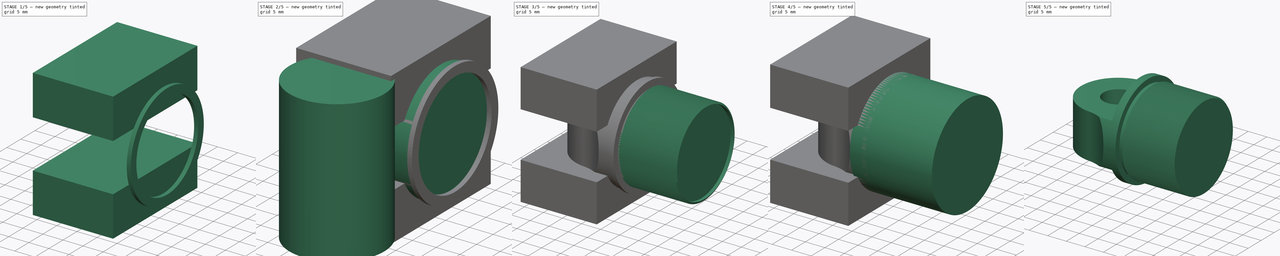
[diagram: build sequence overview — one tinted view per stage of 5, left to right]
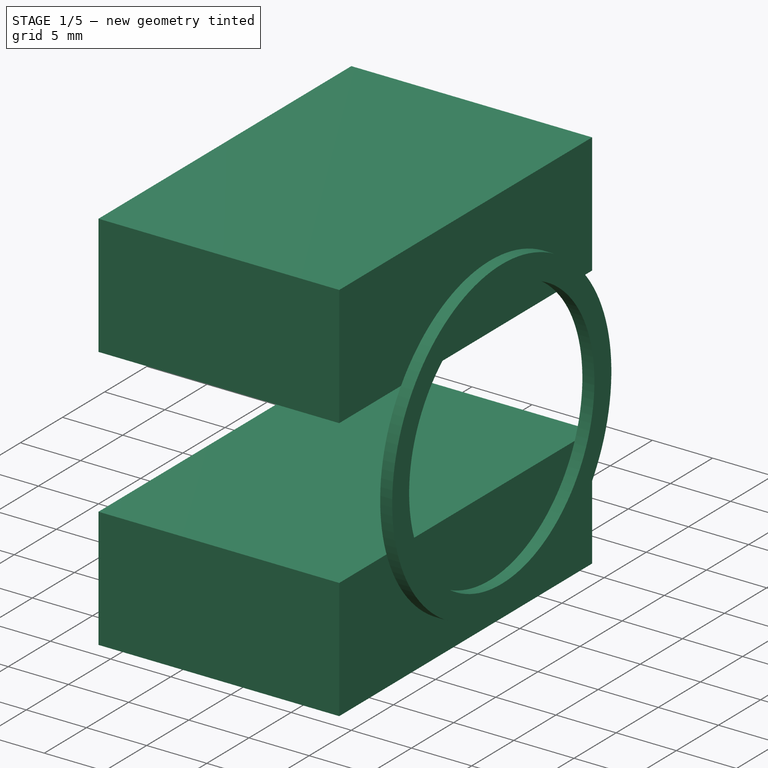
[diagram: stage 1 of 5 — iso view after this stage's code; geometry added in this stage tinted green]
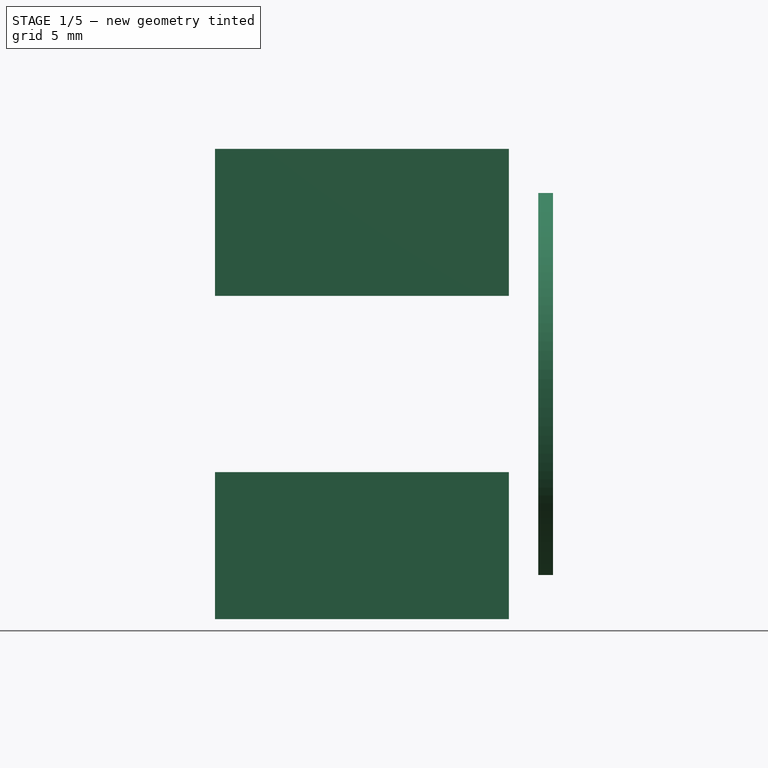
[diagram: stage 1 of 5 — front view after this stage's code; geometry added in this stage tinted green]
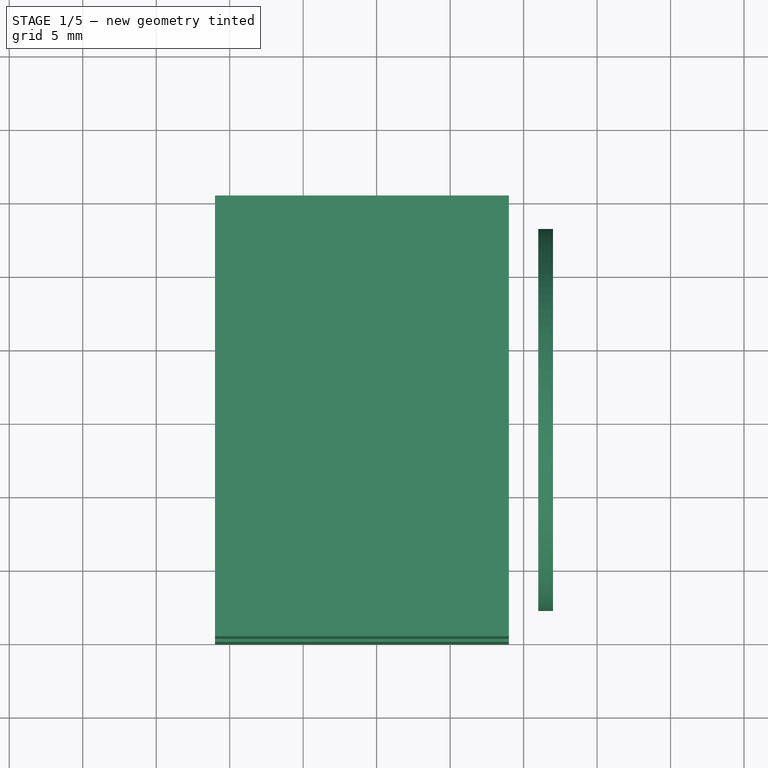
[diagram: stage 1 of 5 — top view after this stage's code; geometry added in this stage tinted green]
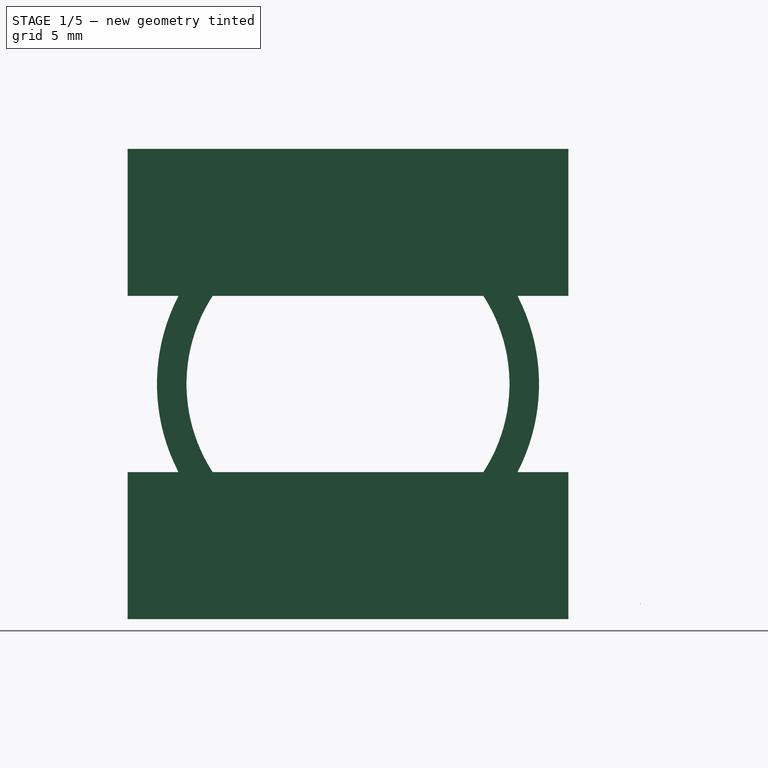
[diagram: stage 1 of 5 — right view after this stage's code; geometry added in this stage tinted green]
FCSTD DOCUMENT  (FreeCAD 0.17R13541 (Git))
Label: ERG-T-01-BC-02
License: All rights reserved
LicenseURL: http://en.wikipedia.org/wiki/All_rights_reserved
objects: Drawing::FeatureViewPython×22, Part::Cylinder×13, Part::MultiFuse×8, Part::Cut×7, Drawing::FeatureViewPart×4, Part::Box×3, Drawing::FeaturePage×2, Sketcher::SketchObject×1, Part::Helix×1, Part::Sweep×1, Part::MultiCommon×1
note: 35 computed .brp shape members not serialized (recipe doc carries the construction recipe); baked Part::Feature solids carry a one-line shape summary decoded from their .brp

FEATURE [Part::Cylinder] Cylinder039  label="Cylinder042"
  Angle = 360
  AttacherType = Attacher::AttachEngine3D
  Height = 1
  Placement = pos=(1,0,0) rot=(0,1,0;1.5708rad)
  Radius = 10.99
FEATURE [Part::Cylinder] Cylinder040  label="Cylinder043"
  Angle = 360
  AttacherType = Attacher::AttachEngine3D
  Height = 1
  Placement = pos=(1,0,0) rot=(0,1,0;1.5708rad)
  Radius = 13
FEATURE [Part::Cut] Cut020
  Base = -> Cylinder040
  Tool = -> Cylinder039
FEATURE [Part::Cylinder] Cylinder041  label="Cylinder044"
  Angle = 360
  AttacherType = Attacher::AttachEngine3D
  Height = 0.1
  Placement = pos=(-9,19.89,-15) rot=(0,0,1;0rad)
  Radius = 0.01
FEATURE [Part::Box] Box001  label="Cube001"
  AttacherType = Attacher::AttachEngine3D
  Height = 10
  Length = 20
  Placement = pos=(-21,-15,6) rot=(0,0,1;0rad)
  Width = 30
FEATURE [Part::Box] Box002  label="Cube002"
  AttacherType = Attacher::AttachEngine3D
  Height = 10
  Length = 20
  Placement = pos=(-21,-15,-16) rot=(0,0,1;0rad)
  Width = 30
FEATURE [Part::MultiFuse] Fusion014
  Shapes = -> [Box002,Box001]
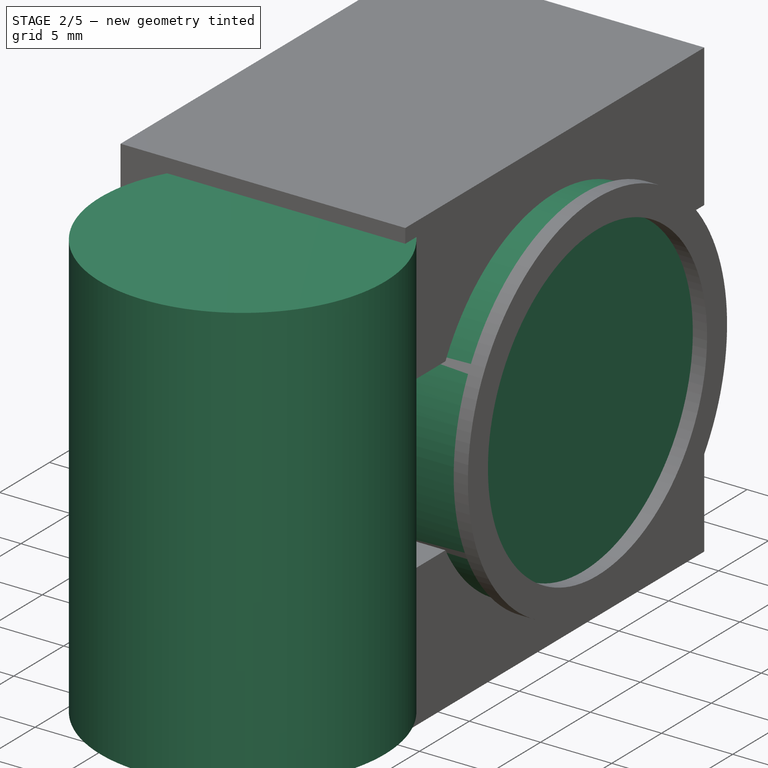
[diagram: stage 2 of 5 — iso view after this stage's code; geometry added in this stage tinted green]
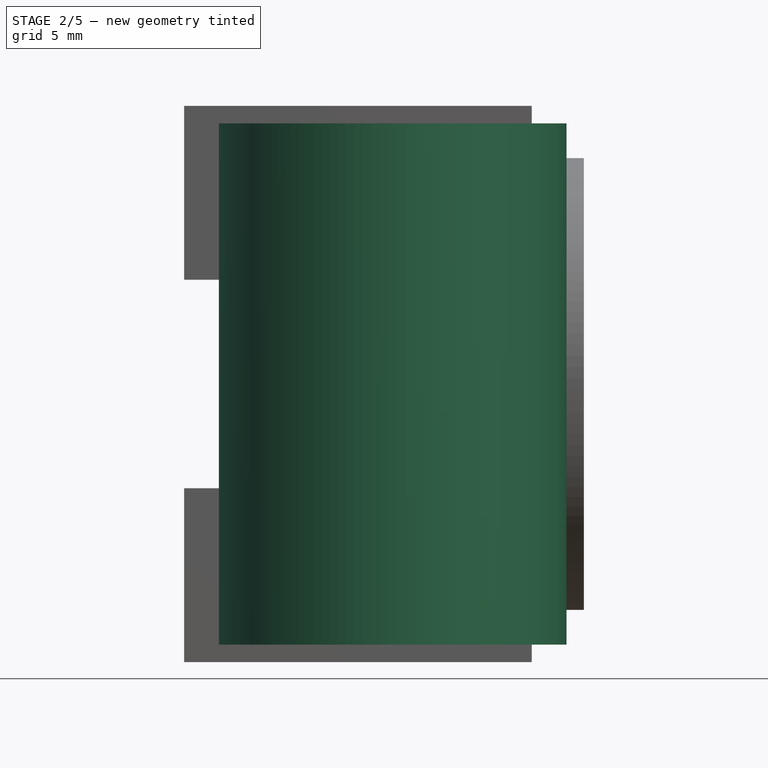
[diagram: stage 2 of 5 — front view after this stage's code; geometry added in this stage tinted green]
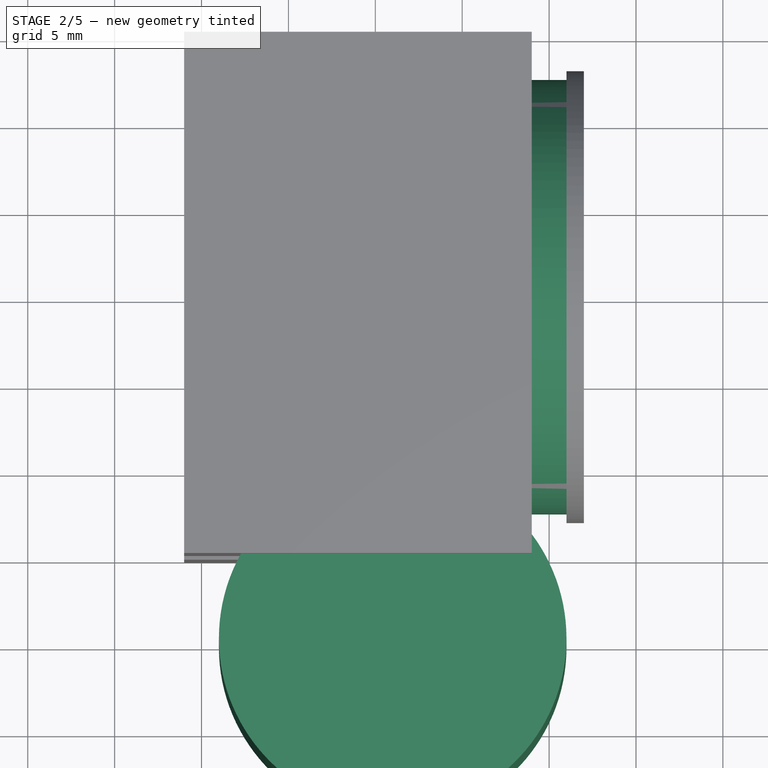
[diagram: stage 2 of 5 — top view after this stage's code; geometry added in this stage tinted green]
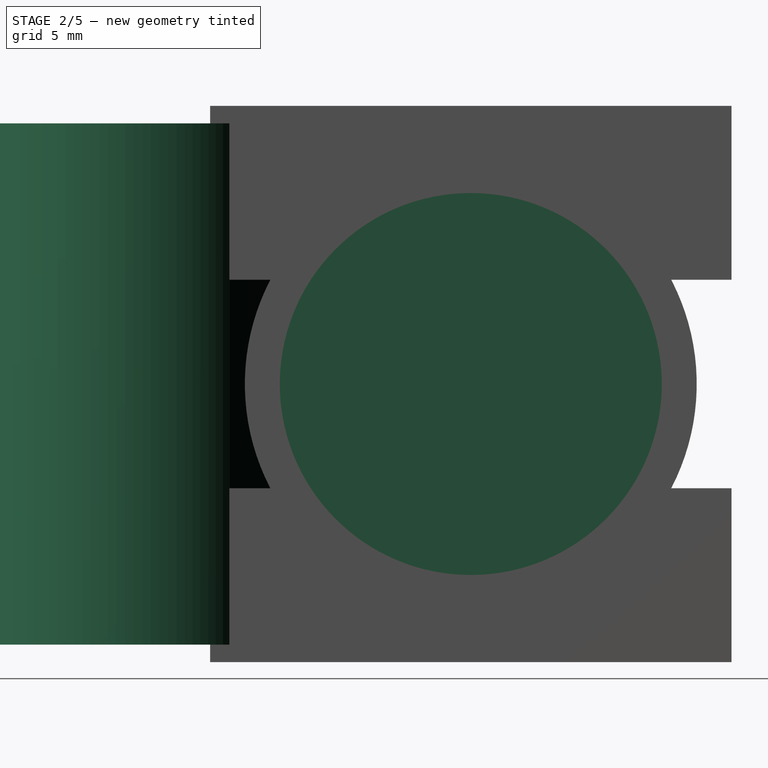
[diagram: stage 2 of 5 — right view after this stage's code; geometry added in this stage tinted green]
FEATURE [Part::Cylinder] Cylinder034  label="Cylinder037"
  Angle = 360
  AttacherType = Attacher::AttachEngine3D
  Height = 20
  Placement = pos=(-19,0,0) rot=(0,1,0;1.5708rad)
  Radius = 12.5
FEATURE [Part::Cylinder] Cylinder035  label="Cylinder038"
  Angle = 360
  AttacherType = Attacher::AttachEngine3D
  Height = 30
  Placement = pos=(-7,0,-15) rot=(0,0,1;0rad)
  Radius = 10
FEATURE [Part::Cylinder] Cylinder038  label="Cylinder041"
  Angle = 360
  AttacherType = Attacher::AttachEngine3D
  Height = 30
  Placement = pos=(-9,-19.89,-15) rot=(0,0,1;0rad)
  Radius = 10
FEATURE [Part::Box] Box  label="Cube"
  AttacherType = Attacher::AttachEngine3D
  Height = 30
  Length = 9
  Placement = pos=(-8,-30,-15) rot=(0,0,1;0rad)
  Width = 60
FEATURE [Part::MultiFuse] Fusion011
  Shapes = -> [Cylinder035,Box]
FEATURE [Part::MultiCommon] Common
  Shapes = -> [Fusion011,Cylinder034]
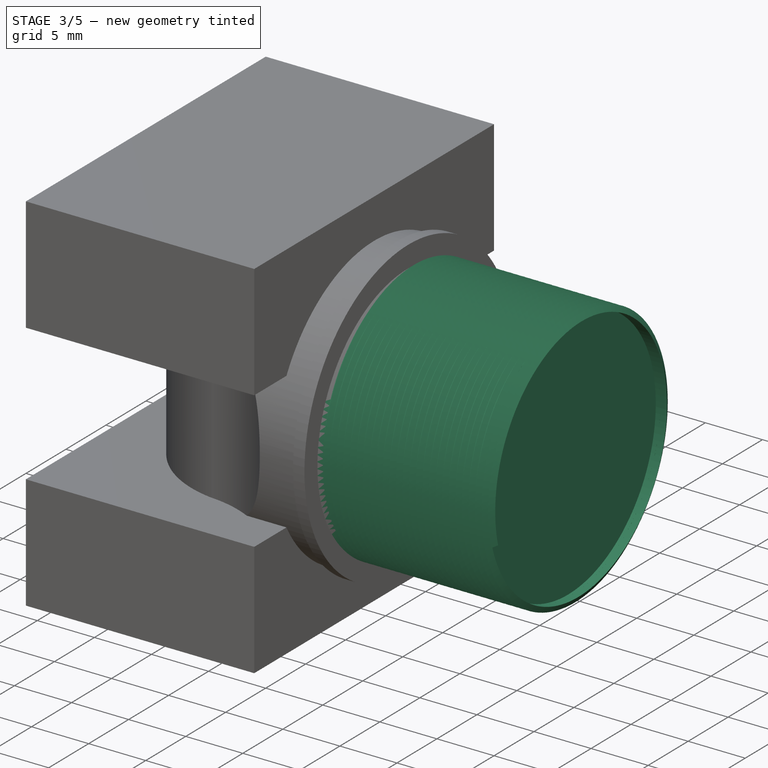
[diagram: stage 3 of 5 — iso view after this stage's code; geometry added in this stage tinted green]
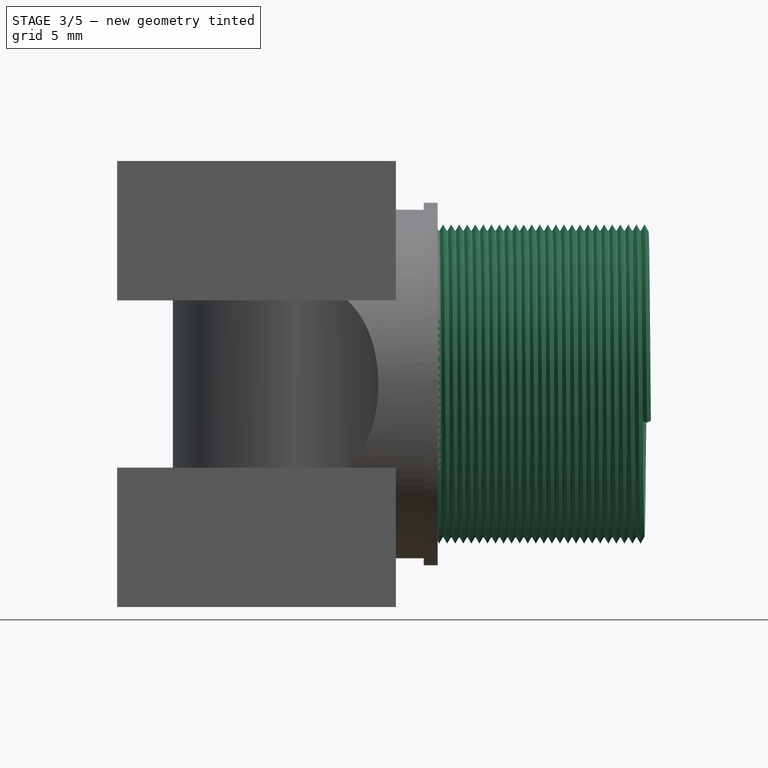
[diagram: stage 3 of 5 — front view after this stage's code; geometry added in this stage tinted green]
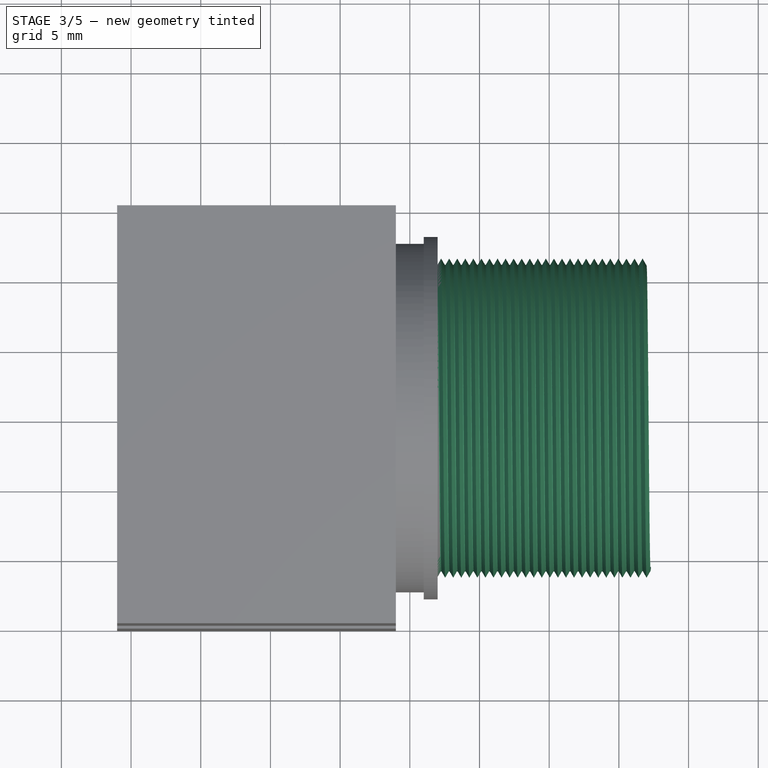
[diagram: stage 3 of 5 — top view after this stage's code; geometry added in this stage tinted green]
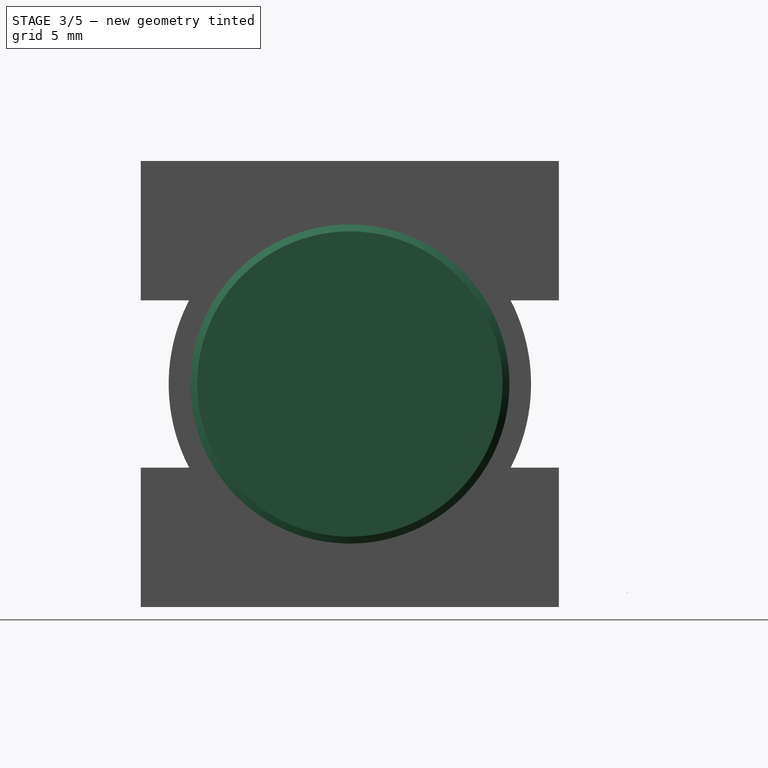
[diagram: stage 3 of 5 — right view after this stage's code; geometry added in this stage tinted green]
FEATURE [Part::Sweep] Sweep013
  Frenet = true
  Placement = pos=(-156.5,0,0) rot=(0,0,1;0rad)
  Sections = -> [Sketch019]
  Solid = true
  Spine = -> Helix013
  Transition = 1
FEATURE [Part::Cylinder] Cylinder
  Angle = 360
  AttacherType = Attacher::AttachEngine3D
  Height = 15
  Placement = pos=(1,0,0) rot=(0,1,0;1.5708rad)
  Radius = 11
FEATURE [Part::Cylinder] Cylinder036  label="Cylinder039"
  Angle = 360
  AttacherType = Attacher::AttachEngine3D
  Height = 30
  Placement = pos=(-7,0,-15) rot=(0,0,1;0rad)
  Radius = 4
FEATURE [Part::Cylinder] Cylinder037  label="Cylinder040"
  Angle = 360
  AttacherType = Attacher::AttachEngine3D
  Height = 30
  Placement = pos=(-9,19.89,-15) rot=(0,0,1;0rad)
  Radius = 10
FEATURE [Part::MultiFuse] Fusion010
  Shapes = -> [Cylinder037,Cylinder038]
FEATURE [Part::Cut] Cut
  Base = -> Common
  Tool = -> Fusion010
FEATURE [Part::Cut] Cut019
  Base = -> Cut
  Tool = -> Cylinder036
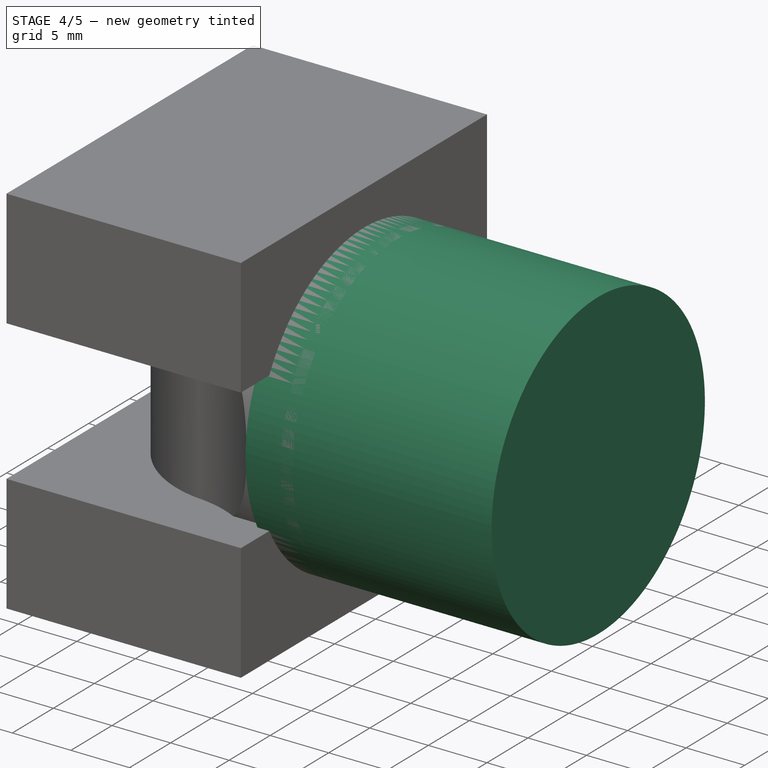
[diagram: stage 4 of 5 — iso view after this stage's code; geometry added in this stage tinted green]
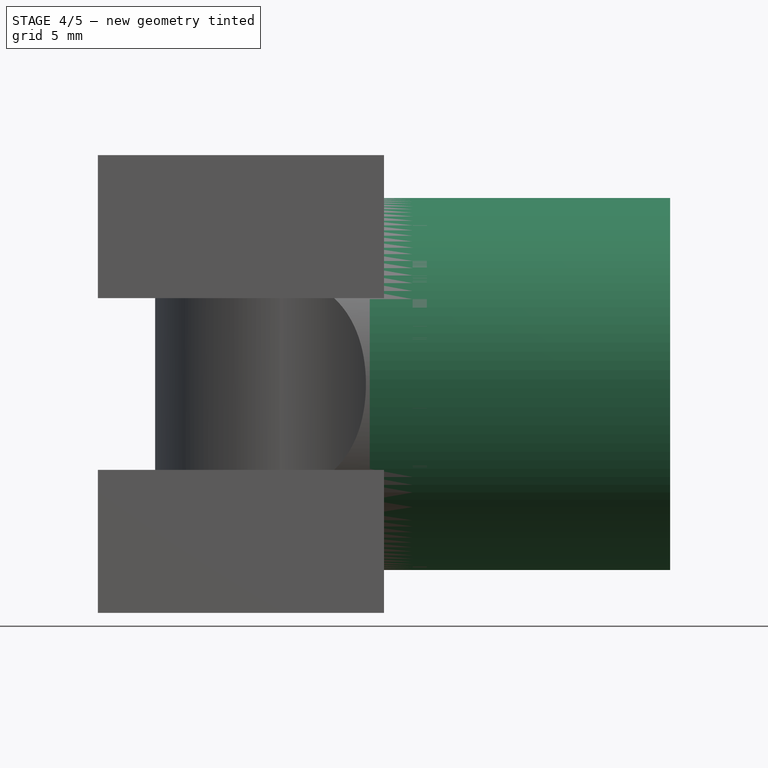
[diagram: stage 4 of 5 — front view after this stage's code; geometry added in this stage tinted green]
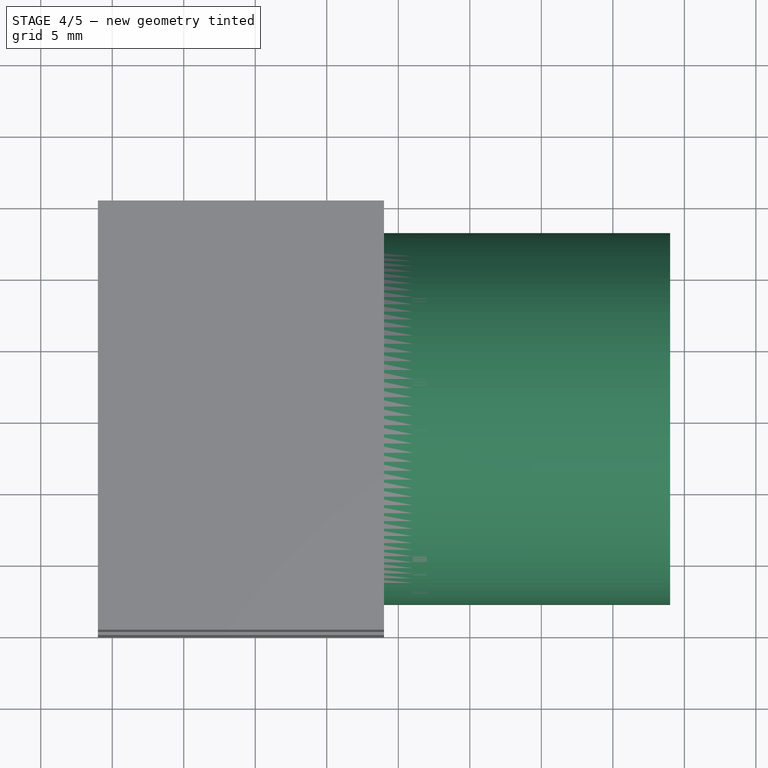
[diagram: stage 4 of 5 — top view after this stage's code; geometry added in this stage tinted green]
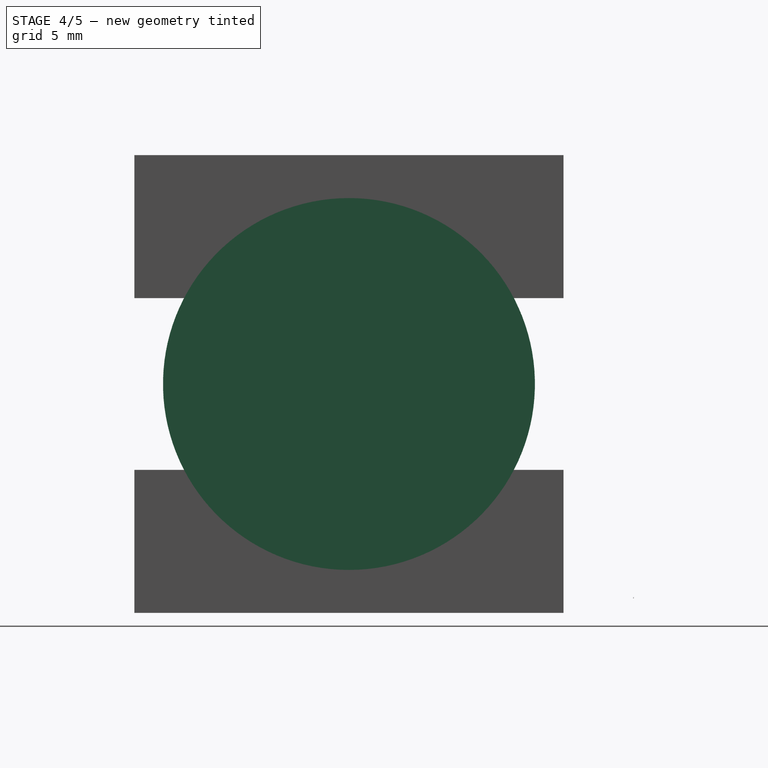
[diagram: stage 4 of 5 — right view after this stage's code; geometry added in this stage tinted green]
FEATURE [Sketcher::SketchObject] Sketch019  label="T018"
  Placement = pos=(156.5,0,-11.45) rot=(1,0,0;1.5708rad)
  sketch-geometry (3):
    g0: LineSegment StartX=0.0792305 StartY=0.500193 StartZ=0 EndX=0.65623 EndY=0.500193 EndZ=0
    g1: LineSegment StartX=0.0792305 StartY=0.500193 StartZ=0 EndX=0.36773 EndY=0.000495962 EndZ=0
    g2: LineSegment StartX=0.36773 StartY=0.000495962 StartZ=0 EndX=0.65623 EndY=0.500193 EndZ=0
  constraints (7):
    c: Horizontal(g0)
    c: DistanceX(g0,g0) = 0.577
    c: Coincident(g1,g0)
    c: Coincident(g2,g1)
    c: Coincident(g2,g0)
    c: Angle(g1,g0) = 1.0472
    c: Angle(g0,g2) = 1.0472
FEATURE [Part::Cylinder] Cylinder030  label="Cylinder033"
  Angle = 360
  AttacherType = Attacher::AttachEngine3D
  Height = 15
  Placement = pos=(1,0,0) rot=(0,1,0;1.5708rad)
  Radius = 13
FEATURE [Part::Cylinder] Cylinder031  label="Cylinder034"
  Angle = 360
  AttacherType = Attacher::AttachEngine3D
  Height = 3
  Placement = pos=(16,0,0) rot=(0,1,0;1.5708rad)
  Radius = 13
FEATURE [Part::Cylinder] Cylinder032  label="Cylinder035"
  Angle = 360
  AttacherType = Attacher::AttachEngine3D
  Height = 3
  Placement = pos=(-2,0,0) rot=(0,1,0;1.5708rad)
  Radius = 13
FEATURE [Part::MultiFuse] Fusion008
  Shapes = -> [Cylinder031,Cylinder032]
FEATURE [Part::Helix] Helix013
  Angle = 0
  AttacherType = Attacher::AttachEngine3D
  Height = 16.64
  LocalCoord = 0
  Pitch = 0.578
  Placement = pos=(157,0,0) rot=(0,1,0;1.5708rad)
  Radius = 9.5
  Style = 1
FEATURE [Part::Cylinder] Cylinder033  label="Cylinder036"
  Angle = 360
  AttacherType = Attacher::AttachEngine3D
  Height = 15
  Placement = pos=(1,0,0) rot=(0,1,0;1.5708rad)
  Radius = 11.5
FEATURE [Part::Cut] Cut018
  Base = -> Cylinder030
  Tool = -> Cylinder033
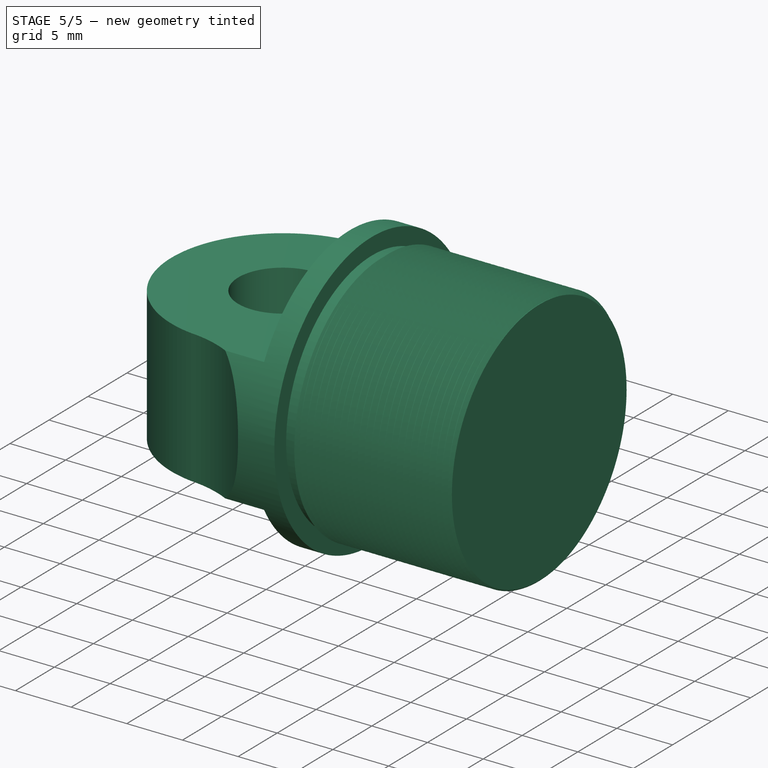
[diagram: stage 5 of 5 — iso view after this stage's code; geometry added in this stage tinted green]
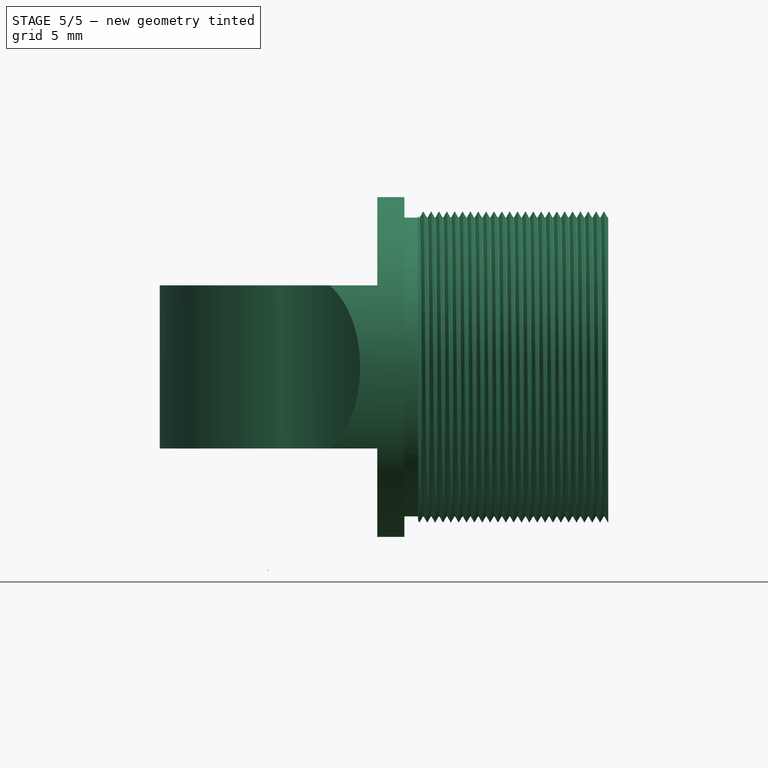
[diagram: stage 5 of 5 — front view after this stage's code; geometry added in this stage tinted green]
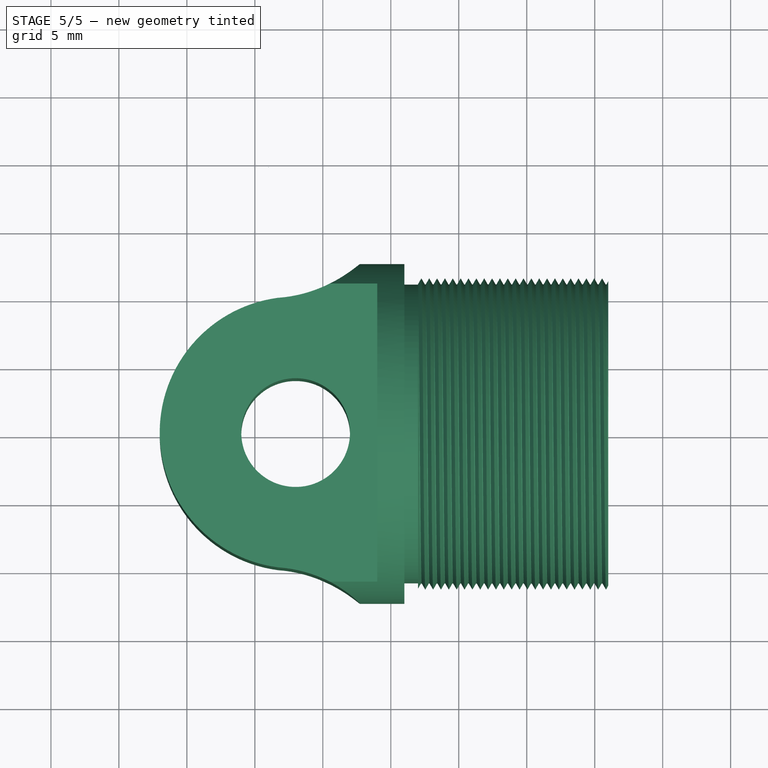
[diagram: stage 5 of 5 — top view after this stage's code; geometry added in this stage tinted green]
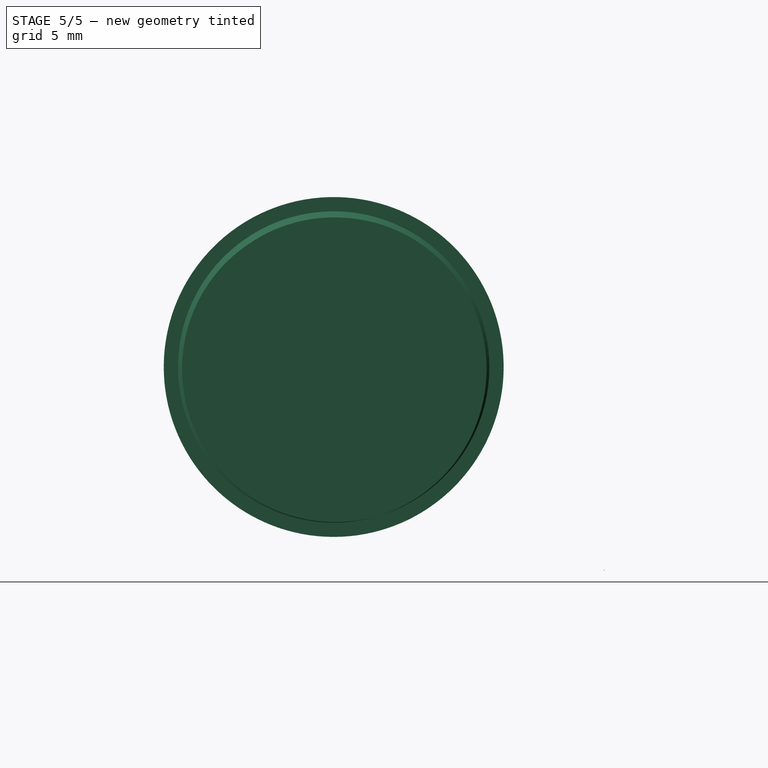
[diagram: stage 5 of 5 — right view after this stage's code; geometry added in this stage tinted green]
FEATURE [Part::MultiFuse] Fusion009
  Shapes = -> [Fusion008,Cut018]
FEATURE [Part::Cut] Cut017
  Base = -> Sweep013
  Tool = -> Fusion009
FEATURE [Part::MultiFuse] Fusion
  Shapes = -> [Cylinder,Cut017]
FEATURE [Part::MultiFuse] Fusion012  label="BatteryCapQ"
  Shapes = -> [Fusion,Cut019]
FEATURE [Part::Cut] Cut021  label="BatteryCapWWW"
  Base = -> Fusion012
  Tool = -> Cut020
FEATURE [Part::MultiFuse] Fusion013  label="BatteryCap-QQQ"
  Shapes = -> [Cut021,Cylinder041]
FEATURE [Part::Cut] Cut022  label="BatteryCap-02"
  Base = -> Fusion013
  Tool = -> Fusion014
FEATURE [Drawing::FeatureViewPart] Ortho  label="Ortho_0_0"
  Direction = (0,0,1)
  HiddenWidth = 0.15
  LineWidth = 0.35
  Rotation = 90
  Scale = 3
  ShowHiddenLines = false
  ShowSmoothLines = false
  Source = -> Cut022
  Tolerance = 0.05
  ViewResult = <blob: 45097 chars omitted>
  Visible = true
  X = 79.9334
  Y = 83
FEATURE [Drawing::FeatureViewPart] Ortho001  label="Ortho_1_0"
  Direction = (0,1,0)
  HiddenWidth = 0.15
  LineWidth = 0.35
  Rotation = 180
  Scale = 3
  ShowHiddenLines = false
  ShowSmoothLines = false
  Source = -> Cut022
  Tolerance = 0.05
  ViewResult = <blob: 40702 chars omitted>
  Visible = true
  X = 209.567
  Y = 83
FEATURE [Drawing::FeatureViewPython] dia001  # drawing view (typed FeaturePython)
  Rotation = 0
  ViewResult = <g>  <circle cx ="79.933400" cy ="62.000000" r="0.250000" stroke="none" fill="rgb(255,0,0)" /> \n<line x1="102.776300" y1="33.921242" x2="72.360517" y2="71.308676" style="stroke:rgb(255,0,0);stroke-width:0.10" />\n<polygon points="87.506283,52.691324 85.856274,53.927233 85.928599,54.630632 86.631997,54.558307" style="fill:rgb(255,0,0);stroke:rgb(255,0,0);stroke-width:0" />\n<polygon points="72.360517,71.308676 74.010526,70.072767 73.938201,69.369368 73.234803,69.441693" style="fill:rgb(255,0,0);stroke:rgb(255,0,0);stroke-width:0" />\n<line x1="102.776300" y1="33.921242" x2="112.648900" y2="33.921242" style="stroke:rgb(255,0,0);stroke-width:0.10" />\n<text x="107.712600" y="31.921242" font-family="inherit" font-size="3.6" fill="rgb(0,0,0)" text-anchor="middle" transform="rotate(0.000000 107.712600,31.921242)" >Ø8</text> </g>
  Visible = true
  X = 0
  Y = 0
  arrowL1 = 2
  arrowL2 = 0.5
  arrowW = 1
  arrow_scheme = 0
  autoPlaceOffset = 2
  autoPlaceText = true
  centerPointDia = 0.5
  click1_x = 102.776
  click1_y = 33.9212
  click2_x = 112.649
  click2_y = 34.4275
  click3_x = 112.649
  click3_y = 34.4275
  comma_decimal_place = false
  lineColor = rgb(255,0,0)
  strokeWidth = 0.1
  textFormat_circular = Ø%(value)3.3f
  textRenderer_color = rgb(0,0,0)
  textRenderer_family = inherit
  textRenderer_size = 3.6
  unit_custom_scale = 1
  unit_scheme = 0
FEATURE [Drawing::FeatureViewPython] rad002  # drawing view (typed FeaturePython)
  Rotation = 0
  ViewResult = <g>  <circle cx ="139.603367" cy ="55.999681" r="0.250000" stroke="none" fill="rgb(255,0,0)" /> \n<line x1="105.560879" y1="68.855058" x2="139.603367" y2="55.999681" style="stroke:rgb(255,0,0);stroke-width:0.10" />\n<polygon points="111.537809,66.598005 113.585485,66.359210 113.876606,65.714812 113.232207,65.423691" style="fill:rgb(255,0,0);stroke:rgb(255,0,0);stroke-width:0" />\n<line x1="105.560879" y1="68.855058" x2="97.207141" y2="68.855058" style="stroke:rgb(255,0,0);stroke-width:0.10" />\n<text x="101.384010" y="66.855058" font-family="inherit" font-size="3.6" fill="rgb(0,0,0)" text-anchor="middle" transform="rotate(0.000000 101.384010,66.855058)" >R10</text> </g>
  Visible = true
  X = 0
  Y = 0
  arrowL1 = 2
  arrowL2 = 0.5
  arrowW = 1
  arrow_scheme = 0
  autoPlaceOffset = 2
  autoPlaceText = true
  centerPointDia = 0.5
  click1_x = 105.561
  click1_y = 68.8551
  click2_x = 97.2071
  click2_y = 69.3613
  click3_x = 97.2071
  click3_y = 69.3613
  comma_decimal_place = false
  lineColor = rgb(255,0,0)
  strokeWidth = 0.1
  textFormat_radial = R%(value)3.3f
  textRenderer_color = rgb(0,0,0)
  textRenderer_family = inherit
  textRenderer_size = 3.6
  unit_custom_scale = 1
  unit_scheme = 0
FEATURE [Drawing::FeatureViewPython] dim001  # drawing view (typed FeaturePython)
  Rotation = 0
  ViewResult = <g> \n  <line x1="45.588200" y1="130.484000" x2="45.588200" y2="155.839499" style="stroke:rgb(255,0,0);stroke-width:0.10" />\n<line x1="114.278600" y1="129.617000" x2="114.278600" y2="155.839499" style="stroke:rgb(255,0,0);stroke-width:0.10" />\n<line x1="45.588200" y1="154.839499" x2="114.278600" y2="154.839499" style="stroke:rgb(255,0,0);stroke-width:0.10" /> \n  <polygon points="114.278600,154.839499 112.278600,154.339499 111.778600,154.839499 112.278600,155.339499" style="fill:rgb(255,0,0);stroke:rgb(255,0,0);stroke-width:0" /><polygon points="45.588200,154.839499 47.588200,155.339499 48.088200,154.839499 47.588200,154.339499" style="fill:rgb(255,0,0);stroke:rgb(255,0,0);stroke-width:0" /> \n  <text x="79.933400" y="152.839499" font-family="inherit" font-size="3.6" fill="rgb(0,0,0)" text-anchor="middle" transform="rotate(0.000000 79.933400,152.839499)" >22.8</text> </g>
  Visible = true
  X = 0
  Y = 0
  arrowL1 = 2
  arrowL2 = 0.5
  arrowW = 1
  arrow_scheme = 0
  autoPlaceOffset = 2
  autoPlaceText = true
  click1_x = 93.8741
  click1_y = 154.839
  click2_x = 93.8741
  click2_y = 154.839
  comma_decimal_place = false
  dimension_line_overshoot = 1
  gap_datum_points = 0
  halfDimension_linear = false
  lineColor = rgb(255,0,0)
  strokeWidth = 0.1
  textFormat_linear = 22.8
  textRenderer_color = rgb(0,0,0)
  textRenderer_family = inherit
  textRenderer_size = 3.6
  unit_custom_scale = 1
  unit_scheme = 0
FEATURE [Drawing::FeatureViewPython] dim002  # drawing view (typed FeaturePython)
  Rotation = 0
  ViewResult = <g> \n  <line x1="45.588200" y1="130.484000" x2="45.588200" y2="139.300299" style="stroke:rgb(255,0,0);stroke-width:0.10" />\n<line x1="46.933400" y1="129.707300" x2="46.933400" y2="139.300299" style="stroke:rgb(255,0,0);stroke-width:0.10" />\n<line x1="45.588200" y1="138.300299" x2="46.933400" y2="138.300299" style="stroke:rgb(255,0,0);stroke-width:0.10" /> \n  <polygon points="46.933400,138.300299 48.933400,138.800299 49.433400,138.300299 48.933400,137.800299" style="fill:rgb(255,0,0);stroke:rgb(255,0,0);stroke-width:0" /><polygon points="45.588200,138.300299 43.588200,137.800299 43.088200,138.300299 43.588200,138.800299" style="fill:rgb(255,0,0);stroke:rgb(255,0,0);stroke-width:0" /> \n  <text x="46.260800" y="136.300299" font-family="inherit" font-size="3.6" fill="rgb(0,0,0)" text-anchor="middle" transform="rotate(0.000000 46.260800,136.300299)" >0.4</text> </g>
  Visible = true
  X = 0
  Y = 0
  arrowL1 = 2
  arrowL2 = 0.5
  arrowW = 1
  arrow_scheme = 0
  autoPlaceOffset = 2
  autoPlaceText = true
  click1_x = 46.4716
  click1_y = 138.3
  click2_x = 46.4716
  click2_y = 138.3
  comma_decimal_place = false
  dimension_line_overshoot = 1
  gap_datum_points = 0
  halfDimension_linear = false
  lineColor = rgb(255,0,0)
  strokeWidth = 0.1
  textFormat_linear = %(value)3.1f
  textRenderer_color = rgb(0,0,0)
  textRenderer_family = inherit
  textRenderer_size = 3.6
  unit_custom_scale = 1
  unit_scheme = 0
FEATURE [Drawing::FeatureViewPython] dim003  # drawing view (typed FeaturePython)
  Rotation = 0
  ViewResult = <g> \n  <line x1="112.933400" y1="130.576100" x2="112.933400" y2="138.341892" style="stroke:rgb(255,0,0);stroke-width:0.10" />\n<line x1="114.278600" y1="129.617000" x2="114.278600" y2="138.341892" style="stroke:rgb(255,0,0);stroke-width:0.10" />\n<line x1="112.933400" y1="137.341892" x2="114.278600" y2="137.341892" style="stroke:rgb(255,0,0);stroke-width:0.10" /> \n  <polygon points="114.278600,137.341892 116.278600,137.841892 116.778600,137.341892 116.278600,136.841892" style="fill:rgb(255,0,0);stroke:rgb(255,0,0);stroke-width:0" /><polygon points="112.933400,137.341892 110.933400,136.841892 110.433400,137.341892 110.933400,137.841892" style="fill:rgb(255,0,0);stroke:rgb(255,0,0);stroke-width:0" /> \n  <text x="113.606000" y="135.341892" font-family="inherit" font-size="3.6" fill="rgb(0,0,0)" text-anchor="middle" transform="rotate(0.000000 113.606000,135.341892)" >0.4</text> </g>
  Visible = true
  X = 0
  Y = 0
  arrowL1 = 2
  arrowL2 = 0.5
  arrowW = 1
  arrow_scheme = 0
  autoPlaceOffset = 2
  autoPlaceText = true
  click1_x = 113.538
  click1_y = 137.342
  click2_x = 113.538
  click2_y = 137.342
  comma_decimal_place = false
  dimension_line_overshoot = 1
  gap_datum_points = 0
  halfDimension_linear = false
  lineColor = rgb(255,0,0)
  strokeWidth = 0.1
  textFormat_linear = %(value)3.1f
  textRenderer_color = rgb(0,0,0)
  textRenderer_family = inherit
  textRenderer_size = 3.6
  unit_custom_scale = 1
  unit_scheme = 0
FEATURE [Drawing::FeatureViewPython] dim004  # drawing view (typed FeaturePython)
  Rotation = 0
  ViewResult = <g> \n  <line x1="42.433400" y1="86.000000" x2="42.433400" y2="166.458599" style="stroke:rgb(255,0,0);stroke-width:0.10" />\n<line x1="117.433400" y1="86.000000" x2="117.433400" y2="166.458599" style="stroke:rgb(255,0,0);stroke-width:0.10" />\n<line x1="42.433400" y1="165.458599" x2="117.433400" y2="165.458599" style="stroke:rgb(255,0,0);stroke-width:0.10" /> \n  <polygon points="117.433400,165.458599 115.433400,164.958599 114.933400,165.458599 115.433400,165.958599" style="fill:rgb(255,0,0);stroke:rgb(255,0,0);stroke-width:0" /><polygon points="42.433400,165.458599 44.433400,165.958599 44.933400,165.458599 44.433400,164.958599" style="fill:rgb(255,0,0);stroke:rgb(255,0,0);stroke-width:0" /> \n  <text x="79.933400" y="163.458599" font-family="inherit" font-size="3.6" fill="rgb(0,0,0)" text-anchor="middle" transform="rotate(0.000000 79.933400,163.458599)" >25</text> </g>
  Visible = true
  X = 0
  Y = 0
  arrowL1 = 2
  arrowL2 = 0.5
  arrowW = 1
  arrow_scheme = 0
  autoPlaceOffset = 2
  autoPlaceText = true
  click1_x = 111.384
  click1_y = 165.459
  click2_x = 111.384
  click2_y = 165.459
  comma_decimal_place = false
  dimension_line_overshoot = 1
  gap_datum_points = 0
  halfDimension_linear = false
  lineColor = rgb(255,0,0)
  strokeWidth = 0.1
  textFormat_linear = %(value)3.1f
  textRenderer_color = rgb(0,0,0)
  textRenderer_family = inherit
  textRenderer_size = 3.6
  unit_custom_scale = 1
  unit_scheme = 0
FEATURE [Drawing::FeatureViewPython] dim005  # drawing view (typed FeaturePython)
  Rotation = 0
  ViewResult = <g> \n  <line x1="47.035700" y1="80.000000" x2="32.600468" y2="80.000000" style="stroke:rgb(255,0,0);stroke-width:0.10" />\n<line x1="42.542900" y1="86.000000" x2="32.600468" y2="86.000000" style="stroke:rgb(255,0,0);stroke-width:0.10" />\n<line x1="33.600468" y1="80.000000" x2="33.600468" y2="86.000000" style="stroke:rgb(255,0,0);stroke-width:0.10" /> \n  <polygon points="33.600468,86.000000 33.100468,88.000000 33.600468,88.500000 34.100468,88.000000" style="fill:rgb(255,0,0);stroke:rgb(255,0,0);stroke-width:0" /><polygon points="33.600468,80.000000 34.100468,78.000000 33.600468,77.500000 33.100468,78.000000" style="fill:rgb(255,0,0);stroke:rgb(255,0,0);stroke-width:0" /> \n  <text x="31.600468" y="83.000000" font-family="inherit" font-size="3.6" fill="rgb(0,0,0)" text-anchor="middle" transform="rotate(-90.000000 31.600468,83.000000)" >2</text> </g>
  Visible = true
  X = 0
  Y = 0
  arrowL1 = 2
  arrowL2 = 0.5
  arrowW = 1
  arrow_scheme = 0
  autoPlaceOffset = 2
  autoPlaceText = true
  click1_x = 33.6005
  click1_y = 85.9682
  click2_x = 33.6005
  click2_y = 85.9682
  comma_decimal_place = false
  dimension_line_overshoot = 1
  gap_datum_points = 0
  halfDimension_linear = false
  lineColor = rgb(255,0,0)
  strokeWidth = 0.1
  textFormat_linear = %(value)3.3f
  textRenderer_color = rgb(0,0,0)
  textRenderer_family = inherit
  textRenderer_size = 3.6
  unit_custom_scale = 1
  unit_scheme = 0
FEATURE [Drawing::FeatureViewPython] dim006  # drawing view (typed FeaturePython)
  Rotation = 0
  ViewResult = <g> \n  <line x1="42.433400" y1="76.211150" x2="25.957765" y2="76.211150" style="stroke:rgb(255,0,0);stroke-width:0.10" />\n<line x1="42.433400" y1="86.000000" x2="25.957765" y2="86.000000" style="stroke:rgb(255,0,0);stroke-width:0.10" />\n<line x1="26.957765" y1="76.211150" x2="26.957765" y2="86.000000" style="stroke:rgb(255,0,0);stroke-width:0.10" /> \n  <polygon points="26.957765,86.000000 27.457765,84.000000 26.957765,83.500000 26.457765,84.000000" style="fill:rgb(255,0,0);stroke:rgb(255,0,0);stroke-width:0" /><polygon points="26.957765,76.211150 26.457765,78.211150 26.957765,78.711150 27.457765,78.211150" style="fill:rgb(255,0,0);stroke:rgb(255,0,0);stroke-width:0" /> \n  <text x="24.957765" y="81.105575" font-family="inherit" font-size="3.6" fill="rgb(0,0,0)" text-anchor="middle" transform="rotate(-90.000000 24.957765,81.105575)" >3.26</text> </g>
  Visible = true
  X = 0
  Y = 0
  arrowL1 = 2
  arrowL2 = 0.5
  arrowW = 1
  arrow_scheme = 0
  autoPlaceOffset = 2
  autoPlaceText = true
  click1_x = 26.9578
  click1_y = 83.711
  click2_x = 26.9578
  click2_y = 83.711
  comma_decimal_place = false
  dimension_line_overshoot = 1
  gap_datum_points = 0
  halfDimension_linear = false
  lineColor = rgb(255,0,0)
  strokeWidth = 0.1
  textFormat_linear = %(value)3.2f
  textRenderer_color = rgb(0,0,0)
  textRenderer_family = inherit
  textRenderer_size = 3.6
  unit_custom_scale = 1
  unit_scheme = 0
FEATURE [Drawing::FeatureViewPython] dim007  # drawing view (typed FeaturePython)
  Rotation = 0
  ViewResult = <g> \n  <line x1="172.176500" y1="80.000000" x2="163.903127" y2="80.000000" style="stroke:rgb(255,0,0);stroke-width:0.10" />\n<line x1="172.091000" y1="86.000000" x2="163.903127" y2="86.000000" style="stroke:rgb(255,0,0);stroke-width:0.10" />\n<line x1="164.903127" y1="80.000000" x2="164.903127" y2="86.000000" style="stroke:rgb(255,0,0);stroke-width:0.10" /> \n  <polygon points="164.903127,86.000000 164.403127,88.000000 164.903127,88.500000 165.403127,88.000000" style="fill:rgb(255,0,0);stroke:rgb(255,0,0);stroke-width:0" /><polygon points="164.903127,80.000000 165.403127,78.000000 164.903127,77.500000 164.403127,78.000000" style="fill:rgb(255,0,0);stroke:rgb(255,0,0);stroke-width:0" /> \n  <text x="162.903127" y="83.000000" font-family="inherit" font-size="3.6" fill="rgb(0,0,0)" text-anchor="middle" transform="rotate(-90.000000 162.903127,83.000000)" >2</text> </g>
  Visible = true
  X = 0
  Y = 0
  arrowL1 = 2
  arrowL2 = 0.5
  arrowW = 1
  arrow_scheme = 0
  autoPlaceOffset = 2
  autoPlaceText = true
  click1_x = 164.903
  click1_y = 85.8105
  click2_x = 164.903
  click2_y = 85.8105
  comma_decimal_place = false
  dimension_line_overshoot = 1
  gap_datum_points = 0
  halfDimension_linear = false
  lineColor = rgb(255,0,0)
  strokeWidth = 0.1
  textFormat_linear = %(value)3.3f
  textRenderer_color = rgb(0,0,0)
  textRenderer_family = inherit
  textRenderer_size = 3.6
  unit_custom_scale = 1
  unit_scheme = 0
FEATURE [Drawing::FeatureViewPython] dim008  # drawing view (typed FeaturePython)
  Rotation = 0
  ViewResult = <g> \n  <line x1="176.188100" y1="89.000000" x2="157.589439" y2="89.000000" style="stroke:rgb(255,0,0);stroke-width:0.10" />\n<line x1="172.091000" y1="86.000000" x2="157.589439" y2="86.000000" style="stroke:rgb(255,0,0);stroke-width:0.10" />\n<line x1="158.589439" y1="89.000000" x2="158.589439" y2="86.000000" style="stroke:rgb(255,0,0);stroke-width:0.10" /> \n  <polygon points="158.589439,86.000000 159.089439,84.000000 158.589439,83.500000 158.089439,84.000000" style="fill:rgb(255,0,0);stroke:rgb(255,0,0);stroke-width:0" /><polygon points="158.589439,89.000000 158.089439,91.000000 158.589439,91.500000 159.089439,91.000000" style="fill:rgb(255,0,0);stroke:rgb(255,0,0);stroke-width:0" /> \n  <text x="156.589439" y="87.500000" font-family="inherit" font-size="3.6" fill="rgb(0,0,0)" text-anchor="middle" transform="rotate(-90.000000 156.589439,87.500000)" >1</text> </g>
  Visible = true
  X = 0
  Y = 0
  arrowL1 = 2
  arrowL2 = 0.5
  arrowW = 1
  arrow_scheme = 0
  autoPlaceOffset = 2
  autoPlaceText = true
  click1_x = 158.589
  click1_y = 88.5141
  click2_x = 158.589
  click2_y = 88.5141
  comma_decimal_place = false
  dimension_line_overshoot = 1
  gap_datum_points = 0
  halfDimension_linear = false
  lineColor = rgb(255,0,0)
  strokeWidth = 0.1
  textFormat_linear = %(value)3.3f
  textRenderer_color = rgb(0,0,0)
  textRenderer_family = inherit
  textRenderer_size = 3.6
  unit_custom_scale = 1
  unit_scheme = 0
FEATURE [Drawing::FeatureViewPython] dim009  # drawing view (typed FeaturePython)
  Rotation = 0
  ViewResult = <g> \n  <line x1="139.603367" y1="55.999681" x2="150.912620" y2="55.999681" style="stroke:rgb(255,0,0);stroke-width:0.10" />\n<line x1="117.433400" y1="86.000000" x2="150.912620" y2="86.000000" style="stroke:rgb(255,0,0);stroke-width:0.10" />\n<line x1="149.912620" y1="55.999681" x2="149.912620" y2="86.000000" style="stroke:rgb(255,0,0);stroke-width:0.10" /> \n  <polygon points="149.912620,86.000000 150.412620,84.000000 149.912620,83.500000 149.412620,84.000000" style="fill:rgb(255,0,0);stroke:rgb(255,0,0);stroke-width:0" /><polygon points="149.912620,55.999681 149.412620,57.999681 149.912620,58.499681 150.412620,57.999681" style="fill:rgb(255,0,0);stroke:rgb(255,0,0);stroke-width:0" /> \n  <text x="147.912620" y="70.999840" font-family="inherit" font-size="3.6" fill="rgb(0,0,0)" text-anchor="middle" transform="rotate(-90.000000 147.912620,70.999840)" >10</text> </g>
  Visible = true
  X = 0
  Y = 0
  arrowL1 = 2
  arrowL2 = 0.5
  arrowW = 1
  arrow_scheme = 0
  autoPlaceOffset = 2
  autoPlaceText = true
  click1_x = 149.913
  click1_y = 71.2787
  click2_x = 149.913
  click2_y = 71.2787
  comma_decimal_place = false
  dimension_line_overshoot = 1
  gap_datum_points = 0
  halfDimension_linear = false
  lineColor = rgb(255,0,0)
  strokeWidth = 0.1
  textFormat_linear = %(value)3.3f
  textRenderer_color = rgb(0,0,0)
  textRenderer_family = inherit
  textRenderer_size = 3.6
  unit_custom_scale = 1
  unit_scheme = 0
FEATURE [Drawing::FeatureViewPython] dim010  # drawing view (typed FeaturePython)
  Rotation = 0
  ViewResult = <g> \n  <line x1="79.933400" y1="62.000000" x2="79.933400" y2="15.201190" style="stroke:rgb(255,0,0);stroke-width:0.10" />\n<line x1="139.603367" y1="55.999681" x2="139.603367" y2="15.201190" style="stroke:rgb(255,0,0);stroke-width:0.10" />\n<line x1="79.933400" y1="16.201190" x2="139.603367" y2="16.201190" style="stroke:rgb(255,0,0);stroke-width:0.10" /> \n  <polygon points="139.603367,16.201190 137.603367,15.701190 137.103367,16.201190 137.603367,16.701190" style="fill:rgb(255,0,0);stroke:rgb(255,0,0);stroke-width:0" /><polygon points="79.933400,16.201190 81.933400,16.701190 82.433400,16.201190 81.933400,15.701190" style="fill:rgb(255,0,0);stroke:rgb(255,0,0);stroke-width:0" /> \n  <text x="109.768383" y="14.201190" font-family="inherit" font-size="3.6" fill="rgb(0,0,0)" text-anchor="middle" transform="rotate(0.000000 109.768383,14.201190)" >19.89</text> </g>
  Visible = true
  X = 0
  Y = 0
  arrowL1 = 2
  arrowL2 = 0.5
  arrowW = 1
  arrow_scheme = 0
  autoPlaceOffset = 2
  autoPlaceText = true
  click1_x = 111.889
  click1_y = 16.2012
  click2_x = 111.889
  click2_y = 16.2012
  comma_decimal_place = false
  dimension_line_overshoot = 1
  gap_datum_points = 0
  halfDimension_linear = false
  lineColor = rgb(255,0,0)
  strokeWidth = 0.1
  textFormat_linear = %(value)3.3f
  textRenderer_color = rgb(0,0,0)
  textRenderer_family = inherit
  textRenderer_size = 3.6
  unit_custom_scale = 1
  unit_scheme = 0
FEATURE [Drawing::FeatureViewPython] dim011  # drawing view (typed FeaturePython)
  Rotation = 0
  ViewResult = <g> \n  <line x1="79.933400" y1="62.000000" x2="17.016558" y2="62.000000" style="stroke:rgb(255,0,0);stroke-width:0.10" />\n<line x1="42.542900" y1="86.000000" x2="17.016558" y2="86.000000" style="stroke:rgb(255,0,0);stroke-width:0.10" />\n<line x1="18.016558" y1="62.000000" x2="18.016558" y2="86.000000" style="stroke:rgb(255,0,0);stroke-width:0.10" /> \n  <polygon points="18.016558,86.000000 18.516558,84.000000 18.016558,83.500000 17.516558,84.000000" style="fill:rgb(255,0,0);stroke:rgb(255,0,0);stroke-width:0" /><polygon points="18.016558,62.000000 17.516558,64.000000 18.016558,64.500000 18.516558,64.000000" style="fill:rgb(255,0,0);stroke:rgb(255,0,0);stroke-width:0" /> \n  <text x="16.016558" y="74.000000" font-family="inherit" font-size="3.6" fill="rgb(0,0,0)" text-anchor="middle" transform="rotate(-90.000000 16.016558,74.000000)" >8</text> </g>
  Visible = true
  X = 0
  Y = 0
  arrowL1 = 2
  arrowL2 = 0.5
  arrowW = 1
  arrow_scheme = 0
  autoPlaceOffset = 2
  autoPlaceText = true
  click1_x = 18.0166
  click1_y = 77.917
  click2_x = 18.0166
  click2_y = 77.917
  comma_decimal_place = false
  dimension_line_overshoot = 1
  gap_datum_points = 0
  halfDimension_linear = false
  lineColor = rgb(255,0,0)
  strokeWidth = 0.1
  textFormat_linear = %(value)3.3f
  textRenderer_color = rgb(0,0,0)
  textRenderer_family = inherit
  textRenderer_size = 3.6
  unit_custom_scale = 1
  unit_scheme = 0
FEATURE [Drawing::FeatureViewPython] dim013  # drawing view (typed FeaturePython)
  Rotation = 0
  ViewResult = <g> \n  <line x1="172.067000" y1="80.000000" x2="172.067000" y2="15.360990" style="stroke:rgb(255,0,0);stroke-width:0.10" />\n<line x1="247.067000" y1="80.000000" x2="247.067000" y2="15.360990" style="stroke:rgb(255,0,0);stroke-width:0.10" />\n<line x1="172.067000" y1="16.360990" x2="247.067000" y2="16.360990" style="stroke:rgb(255,0,0);stroke-width:0.10" /> \n  <polygon points="247.067000,16.360990 245.067000,15.860990 244.567000,16.360990 245.067000,16.860990" style="fill:rgb(255,0,0);stroke:rgb(255,0,0);stroke-width:0" /><polygon points="172.067000,16.360990 174.067000,16.860990 174.567000,16.360990 174.067000,15.860990" style="fill:rgb(255,0,0);stroke:rgb(255,0,0);stroke-width:0" /> \n  <text x="209.567000" y="14.360990" font-family="inherit" font-size="3.6" fill="rgb(0,0,0)" text-anchor="middle" transform="rotate(0.000000 209.567000,14.360990)" >25</text> </g>
  Visible = true
  X = 0
  Y = 0
  arrowL1 = 2
  arrowL2 = 0.5
  arrowW = 1
  arrow_scheme = 0
  autoPlaceOffset = 2
  autoPlaceText = true
  click1_x = 206.315
  click1_y = 16.361
  click2_x = 206.315
  click2_y = 16.361
  comma_decimal_place = false
  dimension_line_overshoot = 1
  gap_datum_points = 0
  halfDimension_linear = false
  lineColor = rgb(255,0,0)
  strokeWidth = 0.1
  textFormat_linear = %(value)3.3f
  textRenderer_color = rgb(0,0,0)
  textRenderer_family = inherit
  textRenderer_size = 3.6
  unit_custom_scale = 1
  unit_scheme = 0
FEATURE [Drawing::FeatureViewPython] dim012  # drawing view (typed FeaturePython)
  Rotation = 0
  ViewResult = <g> \n  <line x1="227.567000" y1="32.000000" x2="227.567000" y2="23.808072" style="stroke:rgb(255,0,0);stroke-width:0.10" />\n<line x1="191.567000" y1="32.000000" x2="191.567000" y2="23.808072" style="stroke:rgb(255,0,0);stroke-width:0.10" />\n<line x1="227.567000" y1="24.808072" x2="191.567000" y2="24.808072" style="stroke:rgb(255,0,0);stroke-width:0.10" /> \n  <polygon points="191.567000,24.808072 193.567000,25.308072 194.067000,24.808072 193.567000,24.308072" style="fill:rgb(255,0,0);stroke:rgb(255,0,0);stroke-width:0" /><polygon points="227.567000,24.808072 225.567000,24.308072 225.067000,24.808072 225.567000,25.308072" style="fill:rgb(255,0,0);stroke:rgb(255,0,0);stroke-width:0" /> \n  <text x="209.567000" y="22.808072" font-family="inherit" font-size="3.6" fill="rgb(0,0,0)" text-anchor="middle" transform="rotate(0.000000 209.567000,22.808072)" >12</text> </g>
  Visible = true
  X = 0
  Y = 0
  arrowL1 = 2
  arrowL2 = 0.5
  arrowW = 1
  arrow_scheme = 0
  autoPlaceOffset = 2
  autoPlaceText = true
  click1_x = 209.856
  click1_y = 24.8081
  click2_x = 209.856
  click2_y = 24.8081
  comma_decimal_place = false
  dimension_line_overshoot = 1
  gap_datum_points = 0
  halfDimension_linear = false
  lineColor = rgb(255,0,0)
  strokeWidth = 0.1
  textFormat_linear = %(value)3.3f
  textRenderer_color = rgb(0,0,0)
  textRenderer_family = inherit
  textRenderer_size = 3.6
  unit_custom_scale = 1
  unit_scheme = 0
FEATURE [Drawing::FeatureViewPython] dim014  # drawing view (typed FeaturePython)
  Rotation = 0
  ViewResult = <g> \n  <line x1="172.067000" y1="80.000000" x2="172.067000" y2="23.839742" style="stroke:rgb(255,0,0);stroke-width:0.10" />\n<line x1="191.567000" y1="80.000000" x2="191.567000" y2="23.839742" style="stroke:rgb(255,0,0);stroke-width:0.10" />\n<line x1="172.067000" y1="24.839742" x2="191.567000" y2="24.839742" style="stroke:rgb(255,0,0);stroke-width:0.10" /> \n  <polygon points="191.567000,24.839742 189.567000,24.339742 189.067000,24.839742 189.567000,25.339742" style="fill:rgb(255,0,0);stroke:rgb(255,0,0);stroke-width:0" /><polygon points="172.067000,24.839742 174.067000,25.339742 174.567000,24.839742 174.067000,24.339742" style="fill:rgb(255,0,0);stroke:rgb(255,0,0);stroke-width:0" /> \n  <text x="181.817000" y="22.839742" font-family="inherit" font-size="3.6" fill="rgb(0,0,0)" text-anchor="middle" transform="rotate(0.000000 181.817000,22.839742)" >6.5</text> </g>
  Visible = true
  X = 0
  Y = 0
  arrowL1 = 2
  arrowL2 = 0.5
  arrowW = 1
  arrow_scheme = 0
  autoPlaceOffset = 2
  autoPlaceText = true
  click1_x = 185.577
  click1_y = 24.8397
  click2_x = 185.577
  click2_y = 24.8397
  comma_decimal_place = false
  dimension_line_overshoot = 1
  gap_datum_points = 0
  halfDimension_linear = false
  lineColor = rgb(255,0,0)
  strokeWidth = 0.1
  textFormat_linear = %(value)3.3f
  textRenderer_color = rgb(0,0,0)
  textRenderer_family = inherit
  textRenderer_size = 3.6
  unit_custom_scale = 1
  unit_scheme = 0
FEATURE [Drawing::FeatureViewPython] dim015  # drawing view (typed FeaturePython)
  Rotation = 0
  ViewResult = <g> \n  <line x1="227.567000" y1="80.000000" x2="227.567000" y2="23.819070" style="stroke:rgb(255,0,0);stroke-width:0.10" />\n<line x1="247.067000" y1="80.000000" x2="247.067000" y2="23.819070" style="stroke:rgb(255,0,0);stroke-width:0.10" />\n<line x1="227.567000" y1="24.819070" x2="247.067000" y2="24.819070" style="stroke:rgb(255,0,0);stroke-width:0.10" /> \n  <polygon points="247.067000,24.819070 245.067000,24.319070 244.567000,24.819070 245.067000,25.319070" style="fill:rgb(255,0,0);stroke:rgb(255,0,0);stroke-width:0" /><polygon points="227.567000,24.819070 229.567000,25.319070 230.067000,24.819070 229.567000,24.319070" style="fill:rgb(255,0,0);stroke:rgb(255,0,0);stroke-width:0" /> \n  <text x="237.317000" y="22.819070" font-family="inherit" font-size="3.6" fill="rgb(0,0,0)" text-anchor="middle" transform="rotate(0.000000 237.317000,22.819070)" >6.5</text> </g>
  Visible = true
  X = 0
  Y = 0
  arrowL1 = 2
  arrowL2 = 0.5
  arrowW = 1
  arrow_scheme = 0
  autoPlaceOffset = 2
  autoPlaceText = true
  click1_x = 233.374
  click1_y = 24.8191
  click2_x = 233.374
  click2_y = 24.8191
  comma_decimal_place = false
  dimension_line_overshoot = 1
  gap_datum_points = 0
  halfDimension_linear = false
  lineColor = rgb(255,0,0)
  strokeWidth = 0.1
  textFormat_linear = %(value)3.3f
  textRenderer_color = rgb(0,0,0)
  textRenderer_family = inherit
  textRenderer_size = 3.6
  unit_custom_scale = 1
  unit_scheme = 0
FEATURE [Drawing::FeatureViewPython] rad001  # drawing view (typed FeaturePython)
  Rotation = 0
  ViewResult = <g>  <circle cx ="79.933400" cy ="62.000080" r="0.250000" stroke="none" fill="rgb(255,0,0)" /> \n<line x1="115.939767" y1="50.122432" x2="79.933400" y2="62.000080" style="stroke:rgb(255,0,0);stroke-width:0.10" />\n<polygon points="108.423308,52.601934 106.367345,52.753645 106.049149,53.385112 106.680617,53.703309" style="fill:rgb(255,0,0);stroke:rgb(255,0,0);stroke-width:0" />\n<line x1="115.939767" y1="50.122432" x2="127.331229" y2="50.122432" style="stroke:rgb(255,0,0);stroke-width:0.10" />\n<text x="121.635498" y="48.122432" font-family="inherit" font-size="3.6" fill="rgb(0,0,0)" text-anchor="middle" transform="rotate(0.000000 121.635498,48.122432)" >R10</text> </g>
  Visible = true
  X = 0
  Y = 0
  arrowL1 = 2
  arrowL2 = 0.5
  arrowW = 1
  arrow_scheme = 0
  autoPlaceOffset = 2
  autoPlaceText = true
  centerPointDia = 0.5
  click1_x = 115.94
  click1_y = 50.1224
  click2_x = 127.331
  click2_y = 50.6287
  click3_x = 127.331
  click3_y = 50.6287
  comma_decimal_place = false
  lineColor = rgb(255,0,0)
  strokeWidth = 0.1
  textFormat_radial = R%(value)3.3f
  textRenderer_color = rgb(0,0,0)
  textRenderer_family = inherit
  textRenderer_size = 3.6
  unit_custom_scale = 1
  unit_scheme = 0
FEATURE [Drawing::FeatureViewPython] dim016  # drawing view (typed FeaturePython)
  Rotation = 0
  ViewResult = <g> \n  <line x1="239.973500" y1="89.000000" x2="262.147927" y2="89.000000" style="stroke:rgb(255,0,0);stroke-width:0.10" />\n<line x1="242.528300" y1="131.000000" x2="262.147927" y2="131.000000" style="stroke:rgb(255,0,0);stroke-width:0.10" />\n<line x1="261.147927" y1="89.000000" x2="261.147927" y2="131.000000" style="stroke:rgb(255,0,0);stroke-width:0.10" /> \n  <polygon points="261.147927,131.000000 261.647927,129.000000 261.147927,128.500000 260.647927,129.000000" style="fill:rgb(255,0,0);stroke:rgb(255,0,0);stroke-width:0" /><polygon points="261.147927,89.000000 260.647927,91.000000 261.147927,91.500000 261.647927,91.000000" style="fill:rgb(255,0,0);stroke:rgb(255,0,0);stroke-width:0" /> \n  <text x="259.147927" y="110.000000" font-family="inherit" font-size="3.6" fill="rgb(0,0,0)" text-anchor="middle" transform="rotate(-90.000000 259.147927,110.000000)" >14</text> </g>
  Visible = true
  X = 0
  Y = 0
  arrowL1 = 2
  arrowL2 = 0.5
  arrowW = 1
  arrow_scheme = 0
  autoPlaceOffset = 2
  autoPlaceText = true
  click1_x = 261.148
  click1_y = 116.077
  click2_x = 261.148
  click2_y = 116.077
  comma_decimal_place = false
  dimension_line_overshoot = 1
  gap_datum_points = 0
  halfDimension_linear = false
  lineColor = rgb(255,0,0)
  strokeWidth = 0.1
  textFormat_linear = %(value)3.3f
  textRenderer_color = rgb(0,0,0)
  textRenderer_family = inherit
  textRenderer_size = 3.6
  unit_custom_scale = 1
  unit_scheme = 0
FEATURE [Drawing::FeatureViewPython] dim018  # drawing view (typed FeaturePython)
  Rotation = 0
  ViewResult = <g> \n  <line x1="242.537000" y1="86.000000" x2="242.537000" y2="82.190537" style="stroke:rgb(255,0,0);stroke-width:0.10" />\n<line x1="176.597000" y1="86.000000" x2="176.597000" y2="82.190537" style="stroke:rgb(255,0,0);stroke-width:0.10" />\n<line x1="242.537000" y1="83.190537" x2="176.597000" y2="83.190537" style="stroke:rgb(255,0,0);stroke-width:0.10" /> \n  <polygon points="176.597000,83.190537 178.597000,83.690537 179.097000,83.190537 178.597000,82.690537" style="fill:rgb(255,0,0);stroke:rgb(255,0,0);stroke-width:0" /><polygon points="242.537000,83.190537 240.537000,82.690537 240.037000,83.190537 240.537000,83.690537" style="fill:rgb(255,0,0);stroke:rgb(255,0,0);stroke-width:0" /> \n  <text x="209.567000" y="81.190537" font-family="inherit" font-size="3.6" fill="rgb(0,0,0)" text-anchor="middle" transform="rotate(0.000000 209.567000,81.190537)" >22.9</text> </g>
  Visible = true
  X = 0
  Y = 0
  arrowL1 = 2
  arrowL2 = 0.5
  arrowW = 1
  arrow_scheme = 0
  autoPlaceOffset = 2
  autoPlaceText = true
  click1_x = 177.316
  click1_y = 83.1905
  click2_x = 177.316
  click2_y = 83.1905
  comma_decimal_place = false
  dimension_line_overshoot = 1
  gap_datum_points = 0
  halfDimension_linear = false
  lineColor = rgb(255,0,0)
  strokeWidth = 0.1
  textFormat_linear = 22.9
  textRenderer_color = rgb(0,0,0)
  textRenderer_family = inherit
  textRenderer_size = 3.6
  unit_custom_scale = 1
  unit_scheme = 0
FEATURE [Drawing::FeatureViewPython] dim017  # drawing view (typed FeaturePython)
  Rotation = 0
  ViewResult = <g> \n  <line x1="227.567000" y1="32.000000" x2="243.429104" y2="32.000000" style="stroke:rgb(255,0,0);stroke-width:0.10" />\n<line x1="227.567000" y1="80.000000" x2="243.429104" y2="80.000000" style="stroke:rgb(255,0,0);stroke-width:0.10" />\n<line x1="242.429104" y1="32.000000" x2="242.429104" y2="80.000000" style="stroke:rgb(255,0,0);stroke-width:0.10" /> \n  <polygon points="242.429104,80.000000 242.929104,78.000000 242.429104,77.500000 241.929104,78.000000" style="fill:rgb(255,0,0);stroke:rgb(255,0,0);stroke-width:0" /><polygon points="242.429104,32.000000 241.929104,34.000000 242.429104,34.500000 242.929104,34.000000" style="fill:rgb(255,0,0);stroke:rgb(255,0,0);stroke-width:0" /> \n  <text x="240.429104" y="56.000000" font-family="inherit" font-size="3.6" fill="rgb(0,0,0)" text-anchor="middle" transform="rotate(-90.000000 240.429104,56.000000)" >16</text> </g>
  Visible = true
  X = 0
  Y = 0
  arrowL1 = 2
  arrowL2 = 0.5
  arrowW = 1
  arrow_scheme = 0
  autoPlaceOffset = 2
  autoPlaceText = true
  click1_x = 242.429
  click1_y = 84.0312
  click2_x = 242.429
  click2_y = 84.0312
  comma_decimal_place = false
  dimension_line_overshoot = 1
  gap_datum_points = 0
  halfDimension_linear = false
  lineColor = rgb(255,0,0)
  strokeWidth = 0.1
  textFormat_linear = %(value)3.3f
  textRenderer_color = rgb(0,0,0)
  textRenderer_family = inherit
  textRenderer_size = 3.6
  unit_custom_scale = 1
  unit_scheme = 0
FEATURE [Drawing::FeatureViewPython] dim020  # drawing view (typed FeaturePython)
  Rotation = 0
  ViewResult = <g> \n  <line x1="79.933400" y1="74.000000" x2="96.983613" y2="74.000000" style="stroke:rgb(255,0,0);stroke-width:0.10" />\n<line x1="79.933400" y1="80.000000" x2="96.983613" y2="80.000000" style="stroke:rgb(255,0,0);stroke-width:0.10" />\n<line x1="95.983613" y1="74.000000" x2="95.983613" y2="80.000000" style="stroke:rgb(255,0,0);stroke-width:0.10" /> \n  <polygon points="95.983613,80.000000 95.483613,82.000000 95.983613,82.500000 96.483613,82.000000" style="fill:rgb(255,0,0);stroke:rgb(255,0,0);stroke-width:0" /><polygon points="95.983613,74.000000 96.483613,72.000000 95.983613,71.500000 95.483613,72.000000" style="fill:rgb(255,0,0);stroke:rgb(255,0,0);stroke-width:0" /> \n  <text x="93.983613" y="77.000000" font-family="inherit" font-size="3.6" fill="rgb(0,0,0)" text-anchor="middle" transform="rotate(-90.000000 93.983613,77.000000)" >2</text> </g>
  Visible = true
  X = 0
  Y = 0
  arrowL1 = 2
  arrowL2 = 0.5
  arrowW = 1
  arrow_scheme = 0
  autoPlaceOffset = 2
  autoPlaceText = true
  click1_x = 95.9836
  click1_y = 79.2832
  click2_x = 95.9836
  click2_y = 79.2832
  comma_decimal_place = false
  dimension_line_overshoot = 1
  gap_datum_points = 0
  halfDimension_linear = false
  lineColor = rgb(255,0,0)
  strokeWidth = 0.1
  textFormat_linear = %(value)3.3f
  textRenderer_color = rgb(0,0,0)
  textRenderer_family = inherit
  textRenderer_size = 3.6
  unit_custom_scale = 1
  unit_scheme = 0
FEATURE [Drawing::FeaturePage] Page  label="PROJECTIONS"
  EditableTexts = Dr. Zoidberg | 13.02.2019 | x3.0 | ??? | ERG-T-01 | Battery Cap. Projections. | Part #3 | Sheet #1
  Group = -> [Ortho,Ortho001,dia001,rad002,dim001,dim002,dim003,dim004,dim005,dim006,dim007,dim008,dim009,dim010,dim011,dim013,dim012,dim014,dim015,rad001,dim016,dim018,dim017,dim020]
  Template = <path>
FEATURE [Drawing::FeatureViewPart] Ortho004  label="Ortho_-1_1"
  Direction = (-0.57735,0.57735,0.57735)
  HiddenWidth = 0.15
  LineWidth = 0.35
  Rotation = 0
  Scale = 3
  ShowHiddenLines = false
  ShowSmoothLines = false
  Source = -> Cut022
  Tolerance = 0.05
  ViewResult = <blob: 18745 chars omitted>
  Visible = true
  X = 80
  Y = 80
FEATURE [Drawing::FeatureViewPart] Ortho005  label="Ortho_1_-1"
  Direction = (0.57735,-0.57735,0.57735)
  HiddenWidth = 0.15
  LineWidth = 0.35
  Rotation = 0
  Scale = 3
  ShowHiddenLines = false
  ShowSmoothLines = false
  Source = -> Cut022
  Tolerance = 0.05
  ViewResult = <blob: 21621 chars omitted>
  Visible = true
  X = 200
  Y = 80
FEATURE [Drawing::FeaturePage] Page001  label="SIDEVIEWS"
  EditableTexts = Dr. Zoidberg | 13.02.2019 | x3.0 | ??? | ERG-T-01 | Battery Cap. Side views. | Part #3 | Sheet #2
  Group = -> [Ortho004,Ortho005]
  Template = <path>
note: 2 file-system paths scrubbed to <path> (originals preserved in the JSON sidecar)
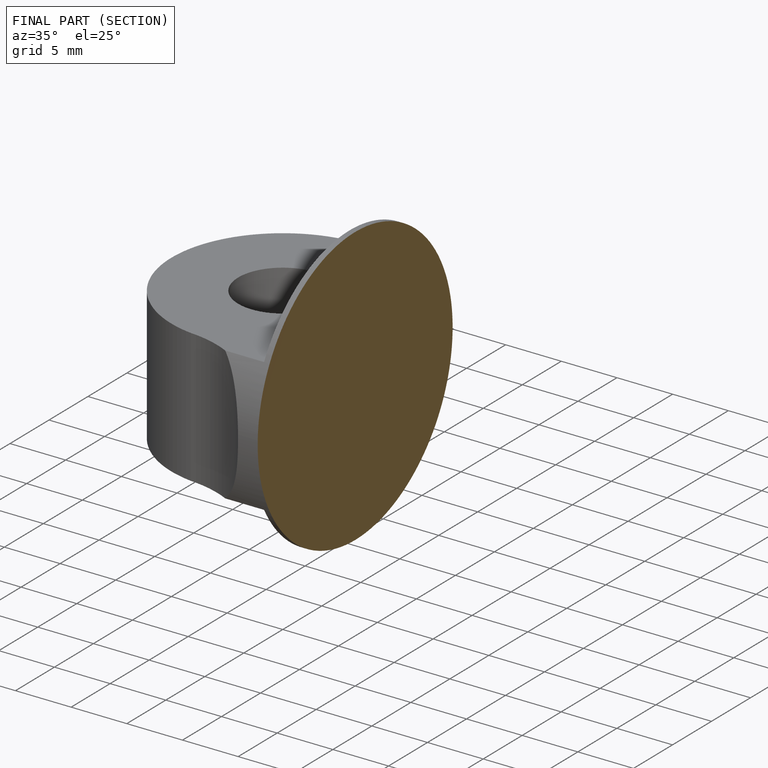
[diagram: finished part — half-section view (interior)]
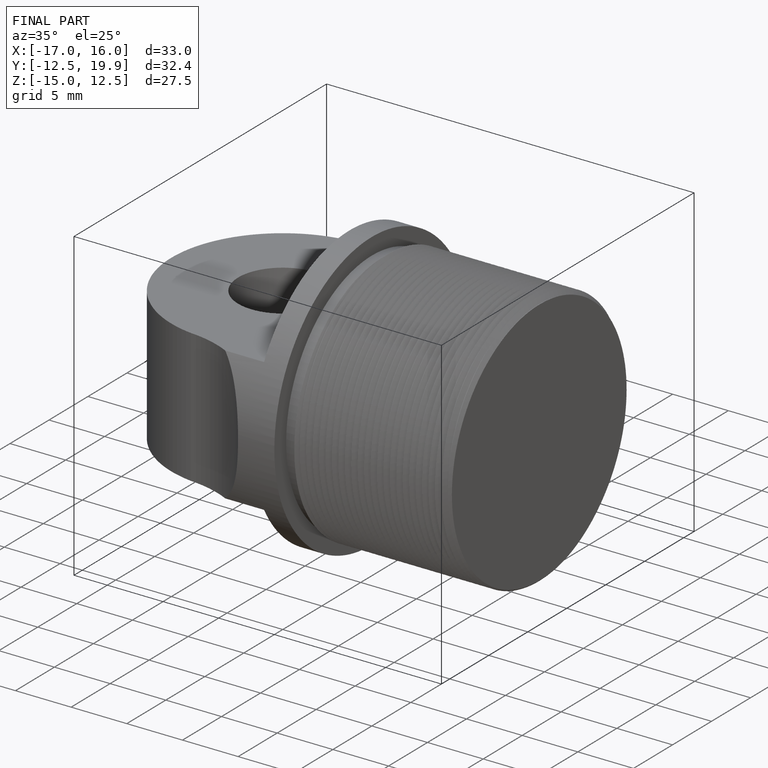
[diagram: finished part — iso view with bounding-box wireframe]
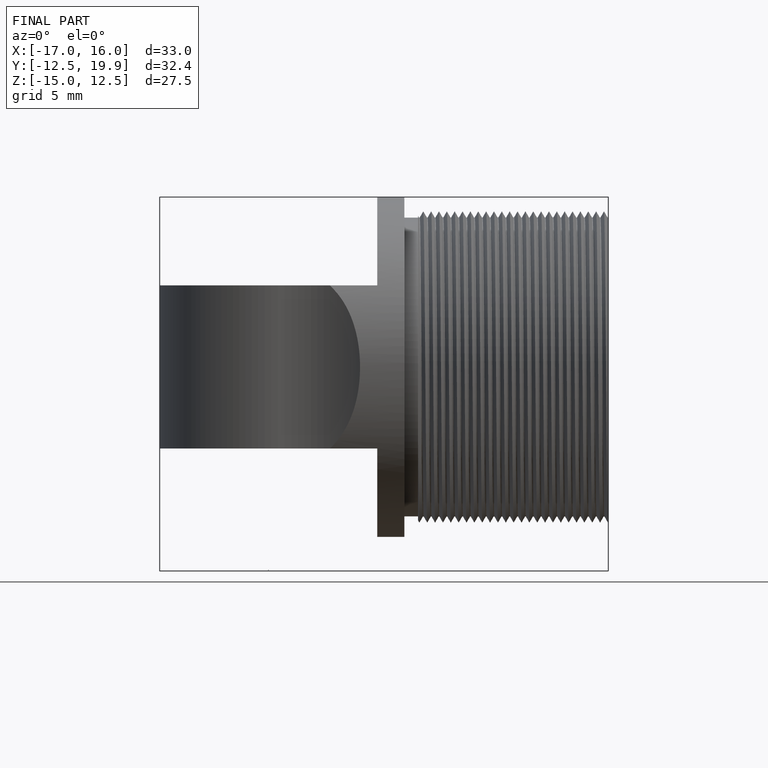
[diagram: finished part — front view with bounding-box wireframe]
